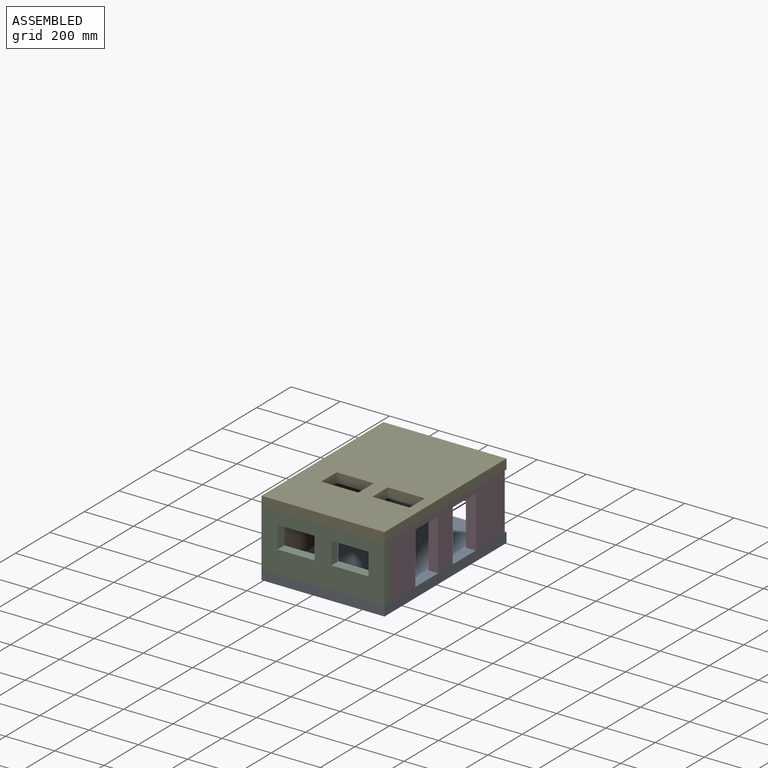
[diagram: assembled view]
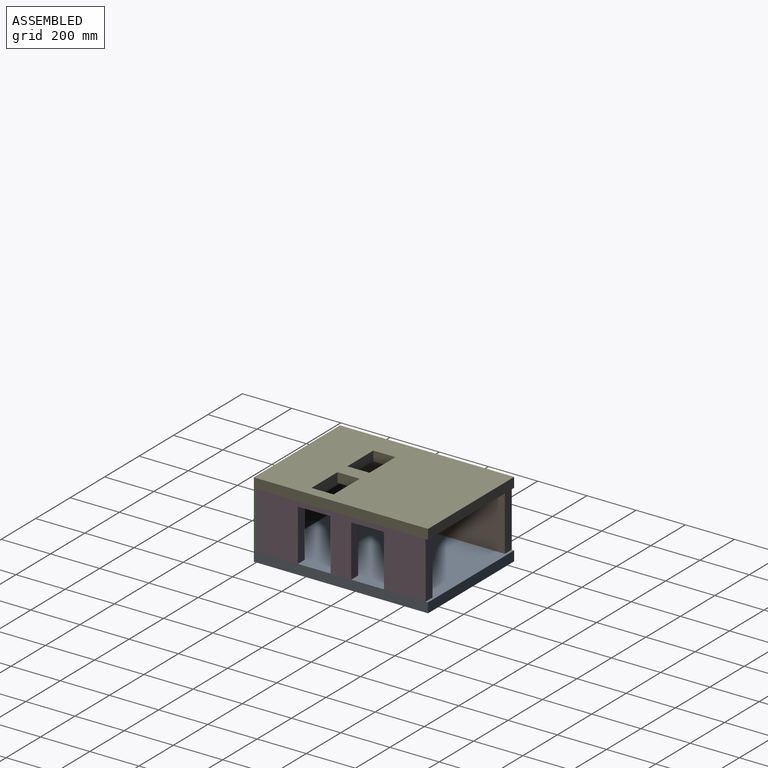
[diagram: assembled view, second angle]
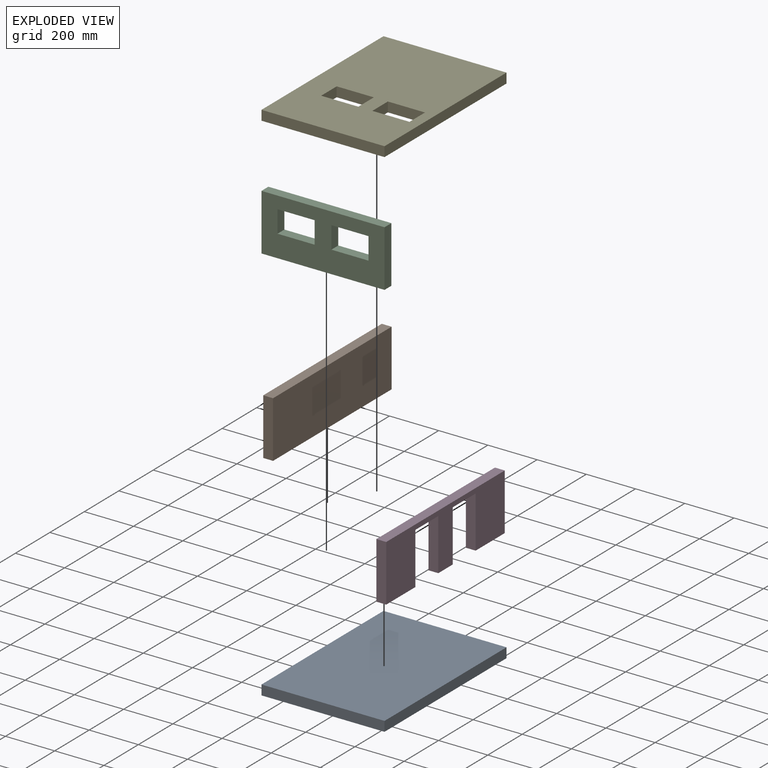
[diagram: exploded view]
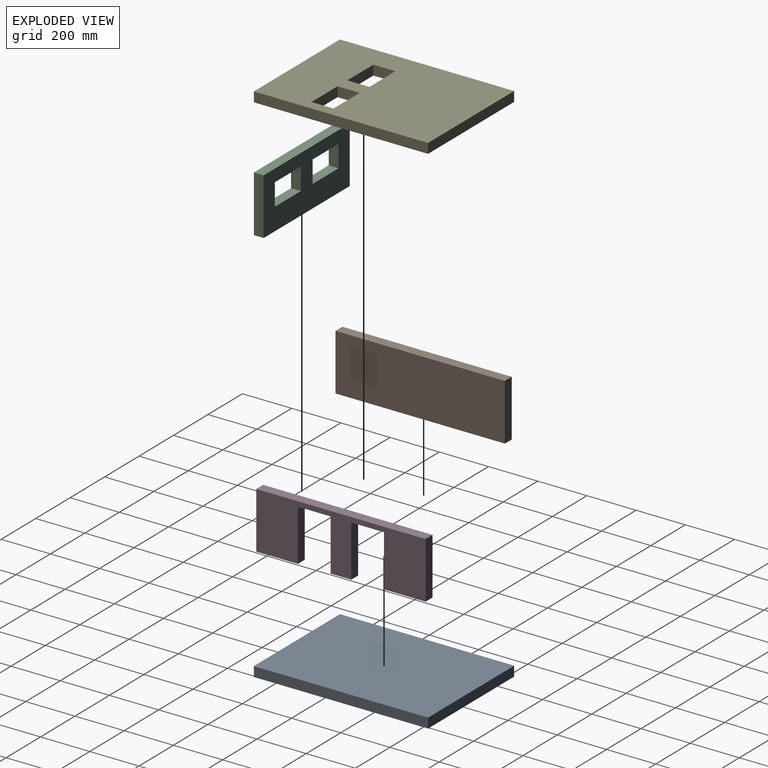
[diagram: exploded view, second angle]
ASSEMBLY  parts=5 mates=4
PART A: 6 faces, bbox 500x708x40 mm
  f0: plane 500x40mm, normal (0,-1,0), area 20000mm2, adj f1,f3,f4,f5
  f1: plane 708x40mm, normal (1,0,0), area 28320mm2, adj f0,f2,f4,f5
  f2: plane 500x40mm, normal (0,1,0), area 20000mm2, adj f1,f3,f4,f5
  f3: plane 708x40mm, normal (-1,0,0), area 28320mm2, adj f0,f2,f4,f5
  f4: plane 708x500mm, normal (0,0,1), area 354000mm2, adj f0,f1,f2,f3
  f5: plane 708x500mm, normal (0,0,-1), area 354000mm2, adj f0,f1,f2,f3
PART B: 6 faces, bbox 688x230x40 mm
  f0: plane 688x40mm, normal (0,-1,0), area 27520mm2, adj f1,f3,f4,f5
  f1: plane 230x40mm, normal (1,0,0), area 9200mm2, adj f0,f2,f4,f5
  f2: plane 688x40mm, normal (0,1,0), area 27520mm2, adj f1,f3,f4,f5
  f3: plane 230x40mm, normal (-1,0,0), area 9200mm2, adj f0,f2,f4,f5
  f4: plane 688x230mm, normal (0,0,1), area 158240mm2, adj f0,f1,f2,f3
  f5: plane 688x230mm, normal (0,0,-1), area 158240mm2, adj f0,f1,f2,f3
PART C: 14 faces, bbox 500x230x40 mm
  f0: plane 500x40mm, normal (0,-1,0), area 20000mm2, adj f1,f11,f12,f13
  f1: plane 230x40mm, normal (1,0,0), area 9200mm2, adj f0,f2,f12,f13
  f2: plane 500x40mm, normal (0,1,0), area 20000mm2, adj f1,f11,f12,f13
  f3: plane 151x40mm, normal (0,1,0), area 6040mm2, adj f4,f9,f12,f13
  f4: plane 90x40mm, normal (1,0,0), area 3600mm2, adj f3,f5,f12,f13
  f5: plane 151x40mm, normal (0,-1,0), area 6040mm2, adj f4,f9,f12,f13
  f6: plane 151x40mm, normal (0,1,0), area 6040mm2, adj f7,f10,f12,f13
  f7: plane 90x40mm, normal (1,0,0), area 3600mm2, adj f6,f8,f12,f13
  f8: plane 151x40mm, normal (0,-1,0), area 6040mm2, adj f7,f10,f12,f13
  f9: plane 90x40mm, normal (-1,0,0), area 3600mm2, adj f3,f5,f12,f13
  f10: plane 90x40mm, normal (-1,0,0), area 3600mm2, adj f6,f8,f12,f13
  f11: plane 230x40mm, normal (-1,0,0), area 9200mm2, adj f0,f2,f12,f13
  f12: plane 500x230mm, normal (0,0,1), area 87820mm2, adj f0,f1,f2,f3,f4,f5,f6,f7
  f13: plane 500x230mm, normal (0,0,-1), area 87820mm2, adj f0,f1,f2,f3,f4,f5,f6,f7
PART D: 14 faces, bbox 688x230x40 mm
  f0: plane 210x40mm, normal (-1,0,0), area 8400mm2, adj f1,f11,f12,f13
  f1: plane 83.6x40mm, normal (0,-1,0), area 3344mm2, adj f0,f2,f12,f13
  f2: plane 210x40mm, normal (1,0,0), area 8400mm2, adj f1,f3,f12,f13
  f3: plane 133.2x40mm, normal (0,-1,0), area 5328mm2, adj f2,f4,f12,f13
  f4: plane 210x40mm, normal (-1,0,0), area 8400mm2, adj f3,f5,f12,f13
  f5: plane 169x40mm, normal (0,-1,0), area 6760mm2, adj f4,f6,f12,f13
  f6: plane 230x40mm, normal (1,0,0), area 9200mm2, adj f5,f7,f12,f13
  f7: plane 688x40mm, normal (0,1,0), area 27520mm2, adj f6,f8,f12,f13
  f8: plane 230x40mm, normal (-1,0,0), area 9200mm2, adj f7,f9,f12,f13
  f9: plane 169x40mm, normal (0,-1,0), area 6760mm2, adj f8,f10,f12,f13
  f10: plane 210x40mm, normal (1,0,0), area 8400mm2, adj f9,f11,f12,f13
  f11: plane 133.2x40mm, normal (0,-1,0), area 5328mm2, adj f0,f10,f12,f13
  f12: plane 688x230mm, normal (0,0,1), area 102296mm2, adj f0,f1,f2,f3,f4,f5,f6,f7
  f13: plane 688x230mm, normal (0,0,-1), area 102296mm2, adj f0,f1,f2,f3,f4,f5,f6,f7
PART E: 14 faces, bbox 708x500x40 mm
  f0: plane 708x40mm, normal (0,-1,0), area 28320mm2, adj f1,f11,f12,f13
  f1: plane 500x40mm, normal (1,0,0), area 20000mm2, adj f0,f2,f12,f13
  f2: plane 708x40mm, normal (0,1,0), area 28320mm2, adj f1,f11,f12,f13
  f3: plane 90x40mm, normal (0,-1,0), area 3600mm2, adj f4,f9,f12,f13
  f4: plane 151x40mm, normal (-1,0,0), area 6040mm2, adj f3,f5,f12,f13
  f5: plane 90x40mm, normal (0,1,0), area 3600mm2, adj f4,f9,f12,f13
  f6: plane 90x40mm, normal (0,-1,0), area 3600mm2, adj f7,f10,f12,f13
  f7: plane 151x40mm, normal (-1,0,0), area 6040mm2, adj f6,f8,f12,f13
  f8: plane 90x40mm, normal (0,1,0), area 3600mm2, adj f7,f10,f12,f13
  f9: plane 151x40mm, normal (1,0,0), area 6040mm2, adj f3,f5,f12,f13
  f10: plane 151x40mm, normal (1,0,0), area 6040mm2, adj f6,f8,f12,f13
  f11: plane 500x40mm, normal (-1,0,0), area 20000mm2, adj f0,f2,f12,f13
  f12: plane 708x500mm, normal (0,0,1), area 326820mm2, adj f0,f1,f2,f3,f4,f5,f6,f7
  f13: plane 708x500mm, normal (0,0,-1), area 326820mm2, adj f0,f1,f2,f3,f4,f5,f6,f7
PLACE A t=(380.58,128.31,-234.62)mm
PLACE B rot(axis=(0.58,0.58,0.58),120deg) t=(130.58,482.31,-194.62)mm
PLACE C rot(axis=(1,0,0),90deg) t=(565.58,168.31,-194.62)mm
PLACE D rot(axis=(0.58,0.58,0.58),120deg) t=(590.58,378.31,-194.62)mm
PLACE E rot(axis=(-0.71,-0.71,0),180deg) t=(130.58,378.31,75.38)mm
MATE fastened A.f4 <-> D.f1  axis (0,0,1) through (630.58,482.31,-194.62)mm
MATE fastened B.f0 <-> A.f4  axis (0,0,-1) through (130.58,482.31,-194.62)mm
MATE fastened A.f4 <-> C.f0  axis (0,0,1) through (380.58,128.31,-194.62)mm
MATE fastened E.f12 <-> D.f7  axis (0,0,-1) through (630.58,482.31,35.38)mm
